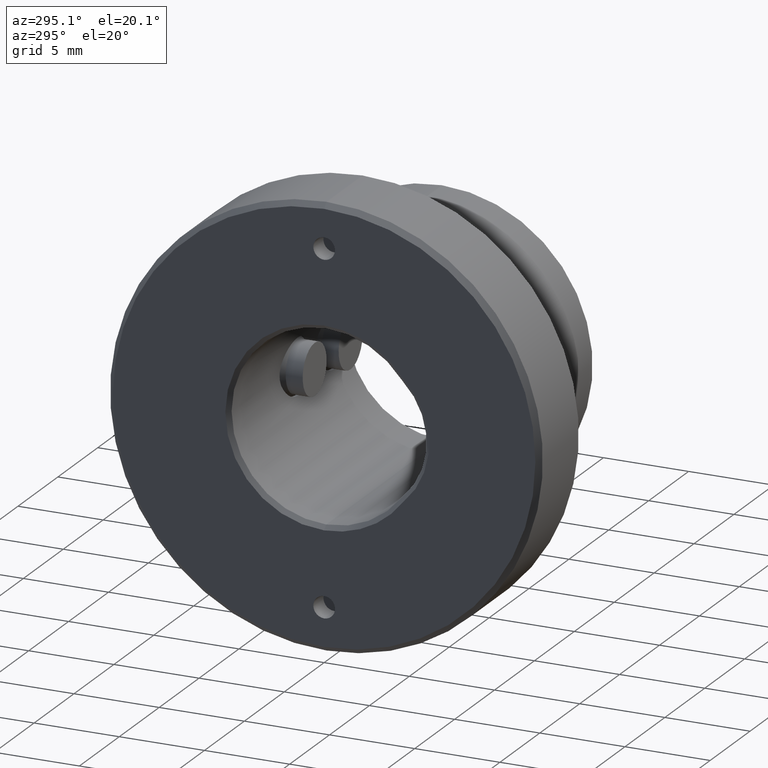
[diagram: clean part render]
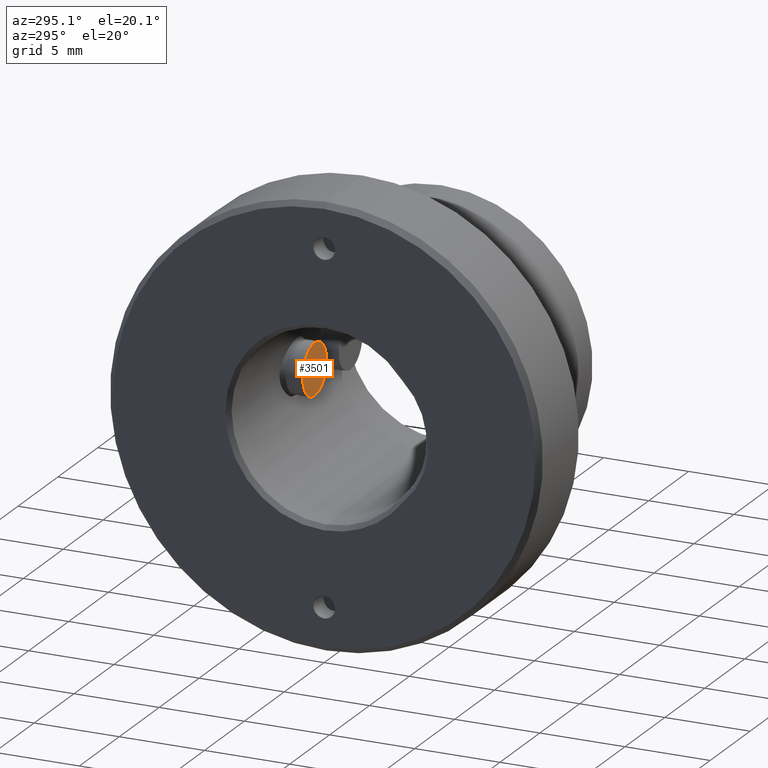
[diagram: same view with one face highlighted and labeled with its STEP entity id]
A machine part, auxiliary view. The second image highlights one B-rep face of the part: STEP entity #3501.
In plain terms, the highlighted planar face has unit normal (0, -1, -0).
Its self-contained STEP definition (entity closure, byte-faithful):
#51 = ORIENTED_EDGE ( 'NONE', *, *, #483, .T. ) ;
#122 = AXIS2_PLACEMENT_3D ( 'NONE', #4207, #4254, #2320 ) ;
#333 = EDGE_CURVE ( 'NONE', #1476, #870, #2459, .T. ) ;
#364 = AXIS2_PLACEMENT_3D ( 'NONE', #1178, #2267, #2292 ) ;
#483 = EDGE_CURVE ( 'NONE', #870, #1476, #1970, .T. ) ;
#521 = AXIS2_PLACEMENT_3D ( 'NONE', #4356, #1658, #3981 ) ;
#554 = ORIENTED_EDGE ( 'NONE', *, *, #333, .T. ) ;
#870 = VERTEX_POINT ( 'NONE', #3012 ) ;
#1178 = CARTESIAN_POINT ( 'NONE',  ( 8.000000000000000000, 4.303905784946757684, -5.610229866977784510E-17 ) ) ;
#1476 = VERTEX_POINT ( 'NONE', #3859 ) ;
#1636 = EDGE_LOOP ( 'NONE', ( #554, #51 ) ) ;
#1658 = DIRECTION ( 'NONE',  ( 5.083153145339589237E-16, -1.000000000000000000, -1.738507377522522658E-17 ) ) ;
#1970 = CIRCLE ( 'NONE', #521, 1.500000000000000444 ) ;
#2267 = DIRECTION ( 'NONE',  ( 5.083153145339587265E-16, -1.000000000000000000, -1.738507377522551624E-17 ) ) ;
#2292 = DIRECTION ( 'NONE',  ( -0.2325108840037028723, -1.012802282667053271E-16, -0.9725937943560077903 ) ) ;
#2320 = DIRECTION ( 'NONE',  ( -0.2325108840037029556, 0.000000000000000000, -0.9725937943560079013 ) ) ;
#2459 = CIRCLE ( 'NONE', #122, 1.500000000000000444 ) ;
#2697 = FACE_OUTER_BOUND ( 'NONE', #1636, .T. ) ;
#3012 = CARTESIAN_POINT ( 'NONE',  ( 7.651233673994445539, 4.303905784946757684, -1.458890691534011852 ) ) ;
#3501 = ADVANCED_FACE ( 'NONE', ( #2697 ), #3827, .T. ) ;
#3827 = PLANE ( 'NONE',  #364 ) ;
#3859 = CARTESIAN_POINT ( 'NONE',  ( 8.348766326005554461, 4.303905784946757684, 1.458890691534011852 ) ) ;
#3981 = DIRECTION ( 'NONE',  ( -0.2325108840037029556, 0.000000000000000000, -0.9725937943560079013 ) ) ;
#4207 = CARTESIAN_POINT ( 'NONE',  ( 8.000000000000000000, 4.303905784946757684, -5.610229866977784510E-17 ) ) ;
#4254 = DIRECTION ( 'NONE',  ( 5.083153145339589237E-16, -1.000000000000000000, -1.738507377522522658E-17 ) ) ;
#4356 = CARTESIAN_POINT ( 'NONE',  ( 8.000000000000000000, 4.303905784946757684, -5.610229866977784510E-17 ) ) ;